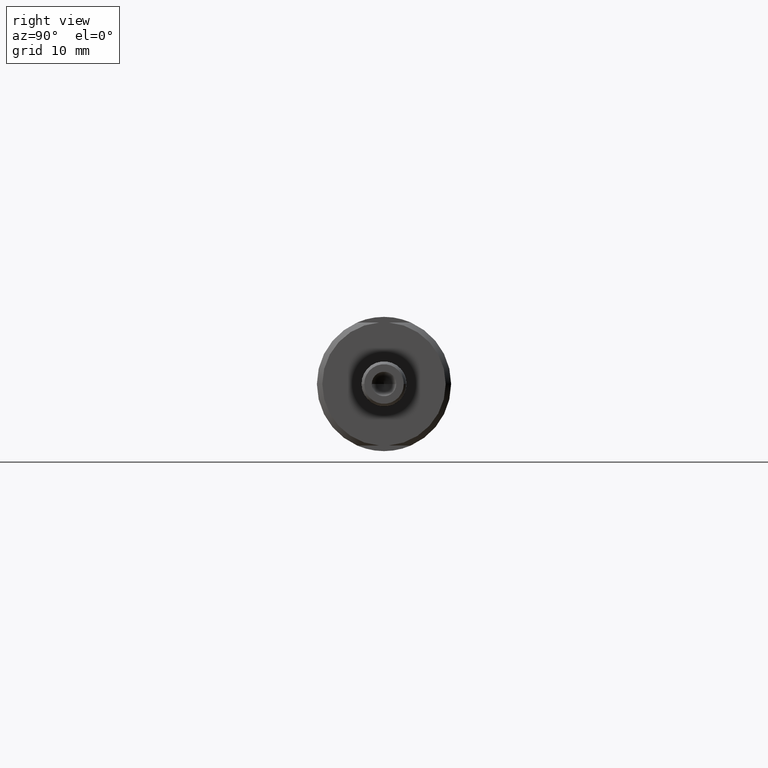
[diagram: clean part render]
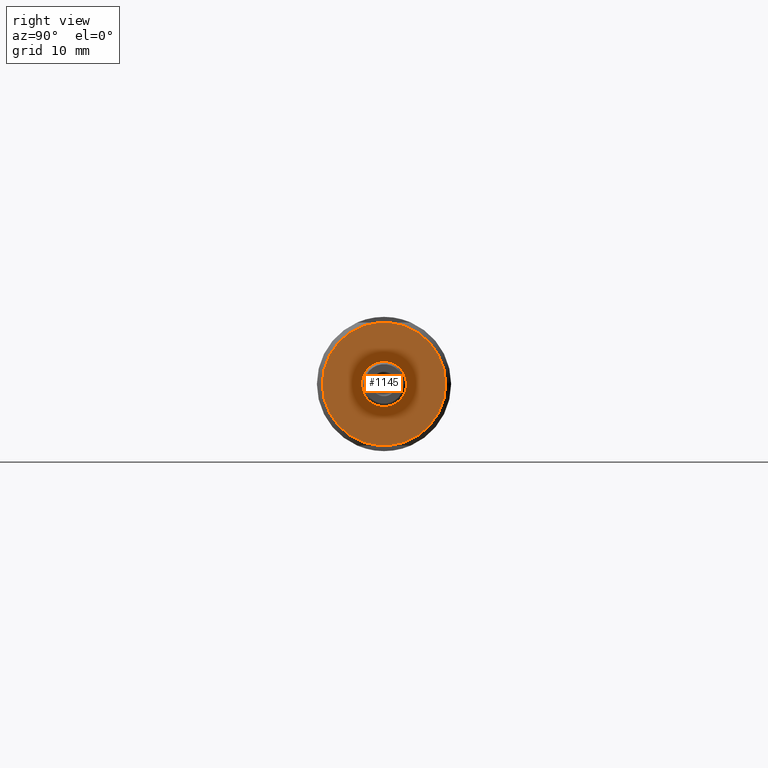
[diagram: same view with one face highlighted and labeled with its STEP entity id]
A machine part, right view. The second image highlights one B-rep face of the part: STEP entity #1145.
In plain terms, the highlighted planar face has unit normal (1, 0, 0).
Its self-contained STEP definition (entity closure, byte-faithful):
#470=CARTESIAN_POINT('',(3.219E0,0.E0,0.E0));
#471=DIRECTION('',(1.E0,0.E0,0.E0));
#472=DIRECTION('',(0.E0,7.641599032380E-2,-9.970760233918E-1));
#473=AXIS2_PLACEMENT_3D('',#470,#471,#472);
#483=CARTESIAN_POINT('',(3.219E0,2.613426869074E-2,3.41E-1));
#524=CARTESIAN_POINT('',(3.219E0,0.E0,0.E0));
#525=DIRECTION('',(1.E0,0.E0,0.E0));
#526=DIRECTION('',(0.E0,-7.641599032380E-2,9.970760233918E-1));
#527=AXIS2_PLACEMENT_3D('',#524,#525,#526);
#537=CARTESIAN_POINT('',(3.219E0,-2.613426869074E-2,-3.41E-1));
#542=CARTESIAN_POINT('',(3.219E0,0.E0,0.E0));
#543=DIRECTION('',(1.E0,0.E0,0.E0));
#544=DIRECTION('',(0.E0,1.E0,0.E0));
#545=AXIS2_PLACEMENT_3D('',#542,#543,#544);
#550=CARTESIAN_POINT('',(3.219E0,0.E0,0.E0));
#551=DIRECTION('',(1.E0,0.E0,0.E0));
#552=DIRECTION('',(0.E0,-1.E0,0.E0));
#553=AXIS2_PLACEMENT_3D('',#550,#551,#552);
#558=DIRECTION('',(0.E0,1.E0,0.E0));
#559=VECTOR('',#558,5.226853738148E-2);
#560=CARTESIAN_POINT('',(3.219E0,-2.613426869074E-2,3.41E-1));
#561=LINE('',#560,#559);
#565=DIRECTION('',(0.E0,1.E0,0.E0));
#566=VECTOR('',#565,5.226853738148E-2);
#567=CARTESIAN_POINT('',(3.219E0,-2.613426869074E-2,-3.41E-1));
#568=LINE('',#567,#566);
#738=CARTESIAN_POINT('',(3.219E0,1.25E-1,0.E0));
#739=CARTESIAN_POINT('',(3.219E0,-1.25E-1,0.E0));
#740=VERTEX_POINT('',#738);
#741=VERTEX_POINT('',#739);
#768=VERTEX_POINT('',#483);
#773=CARTESIAN_POINT('',(3.219E0,-2.613426869074E-2,3.41E-1));
#774=VERTEX_POINT('',#773);
#783=VERTEX_POINT('',#537);
#784=CARTESIAN_POINT('',(3.219E0,2.613426869074E-2,-3.41E-1));
#785=VERTEX_POINT('',#784);
#1128=CARTESIAN_POINT('',(3.219E0,0.E0,0.E0));
#1129=DIRECTION('',(1.E0,0.E0,0.E0));
#1130=DIRECTION('',(0.E0,0.E0,-1.E0));
#1131=AXIS2_PLACEMENT_3D('',#1128,#1129,#1130);
#1132=PLANE('',#1131);
#1133=ORIENTED_EDGE('',*,*,#1004,.T.);
#1134=ORIENTED_EDGE('',*,*,#1107,.F.);
#1135=ORIENTED_EDGE('',*,*,#1095,.F.);
#1136=ORIENTED_EDGE('',*,*,#1122,.F.);
#1137=EDGE_LOOP('',(#1133,#1134,#1135,#1136));
#1138=FACE_OUTER_BOUND('',#1137,.F.);
#1140=ORIENTED_EDGE('',*,*,#1139,.T.);
#1142=ORIENTED_EDGE('',*,*,#1141,.T.);
#1143=EDGE_LOOP('',(#1140,#1142));
#1144=FACE_BOUND('',#1143,.F.);
#474=CIRCLE('',#473,3.42E-1);
#528=CIRCLE('',#527,3.42E-1);
#546=CIRCLE('',#545,1.25E-1);
#554=CIRCLE('',#553,1.25E-1);
#1004=EDGE_CURVE('',#774,#768,#561,.T.);
#1095=EDGE_CURVE('',#783,#785,#568,.T.);
#1107=EDGE_CURVE('',#785,#768,#474,.T.);
#1122=EDGE_CURVE('',#774,#783,#528,.T.);
#1139=EDGE_CURVE('',#740,#741,#546,.T.);
#1141=EDGE_CURVE('',#741,#740,#554,.T.);
#1145=ADVANCED_FACE('',(#1138,#1144),#1132,.T.);